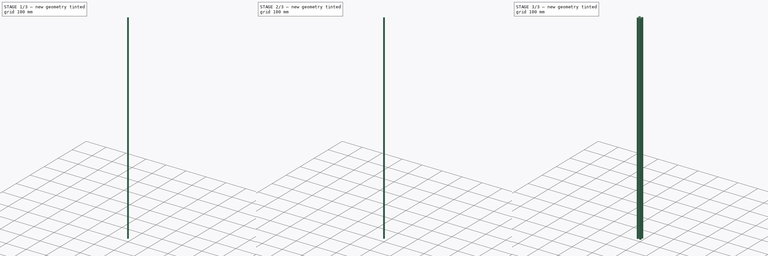
[diagram: build sequence overview — one tinted view per stage of 3, left to right]
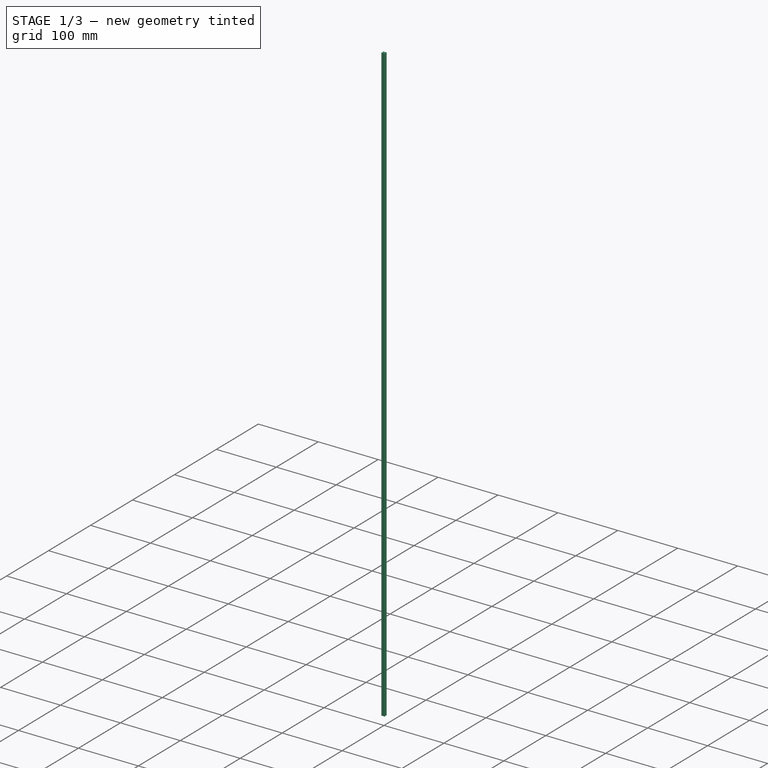
[diagram: stage 1 of 3 — iso view after this stage's code; geometry added in this stage tinted green]
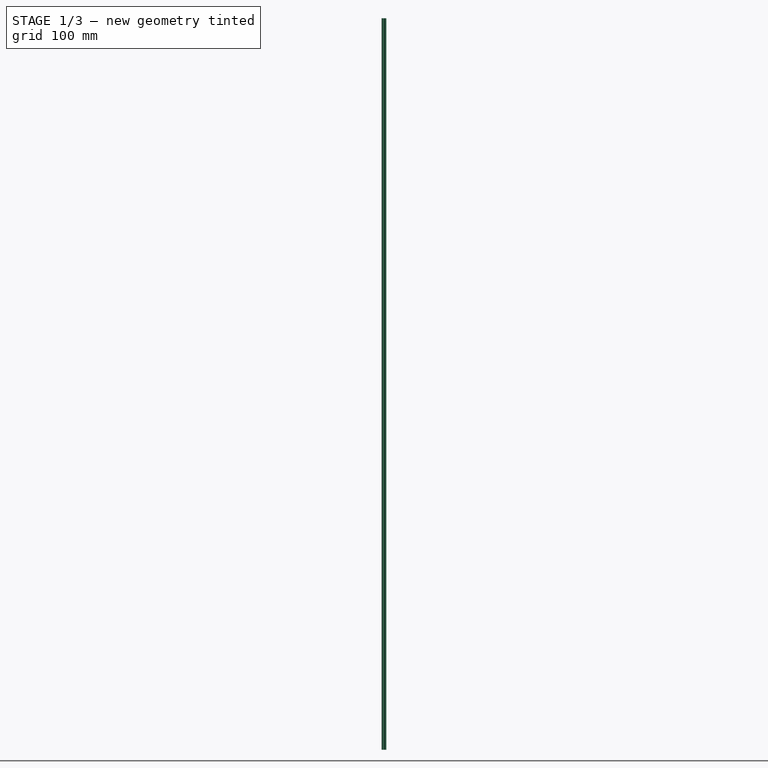
[diagram: stage 1 of 3 — front view after this stage's code; geometry added in this stage tinted green]
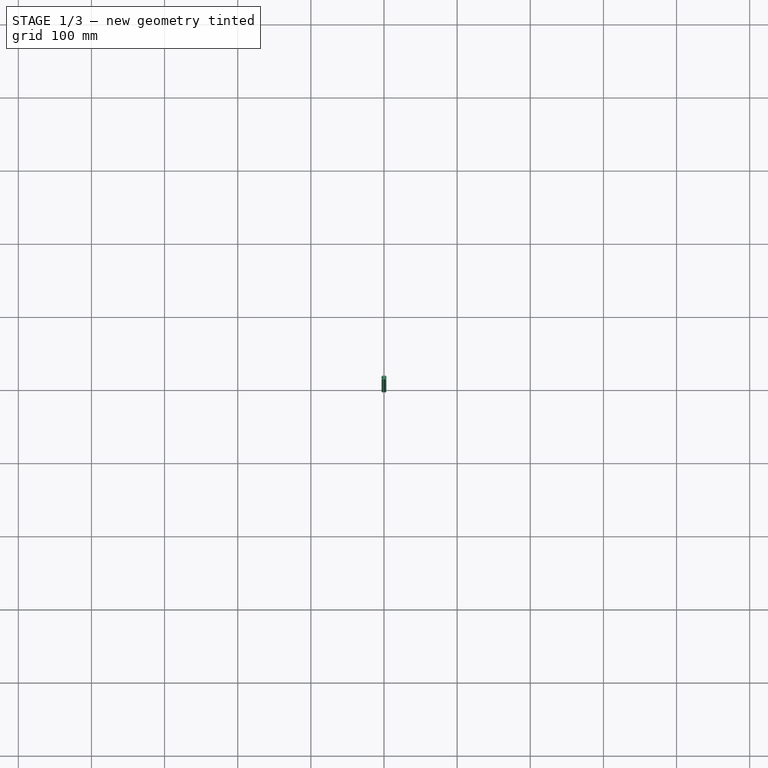
[diagram: stage 1 of 3 — top view after this stage's code; geometry added in this stage tinted green]
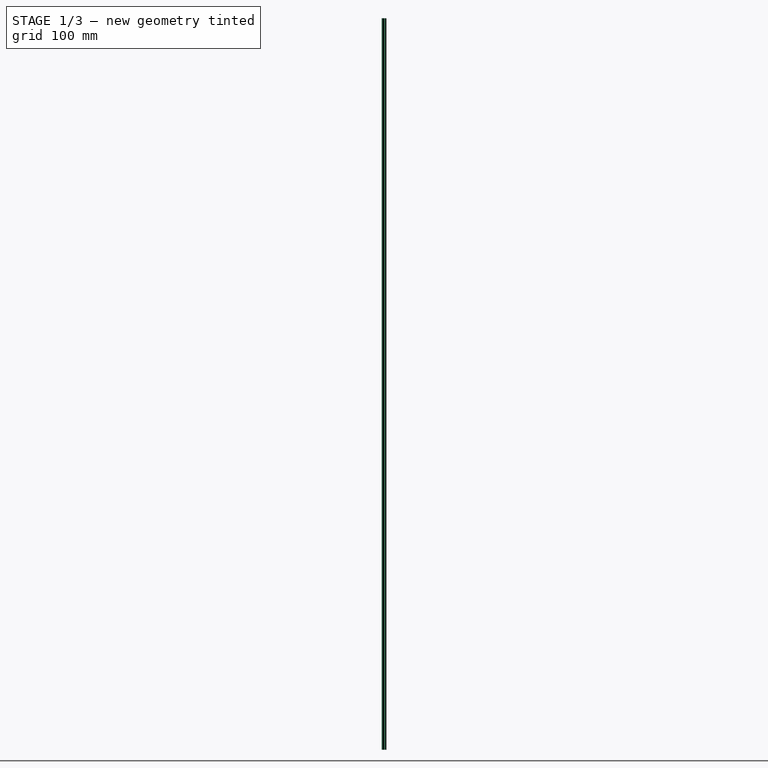
[diagram: stage 1 of 3 — right view after this stage's code; geometry added in this stage tinted green]
FCSTD DOCUMENT  (FreeCAD 0.19R24267 +99 (Git))
Label: TypeB_20x20_4open
License: All rights reserved
LicenseURL: https://en.wikipedia.org/wiki/All_rights_reserved
objects: Part::Box×2, Part::MultiFuse×2, Sketcher::SketchObject×1, PartDesign::Pad×1, PartDesign::Body×1, Spreadsheet::Sheet×1, Part::Cylinder×1, Part::Cut×1, Part::Fillet×1
note: 11 computed .brp shape members not serialized (recipe doc carries the construction recipe); baked Part::Feature solids carry a one-line shape summary decoded from their .brp

FEATURE [Part::Box] Box  label="Cube"
  AttacherType = Attacher::AttachEngine3D
  Height = 1000
  Length = 2
  Placement = pos=(-1,-3.55,0) rot=(0,0,1;0rad)
  Width = 7.1
  expr: Height = <<TypeB_20x20_4open_props>>.extrusion_length
FEATURE [Part::Box] Box001  label="Cube001"
  AttacherType = Attacher::AttachEngine3D
  Height = 1000
  Length = 2
  Placement = pos=(3.55,-1,0) rot=(0,0,1;1.5708rad)
  Width = 7.1
  expr: Height = <<TypeB_20x20_4open_props>>.extrusion_length
FEATURE [Part::MultiFuse] Fusion
  Placement = pos=(0,0,0) rot=(0,0,1;0.785398rad)
  Shapes = -> [Box001,Box]
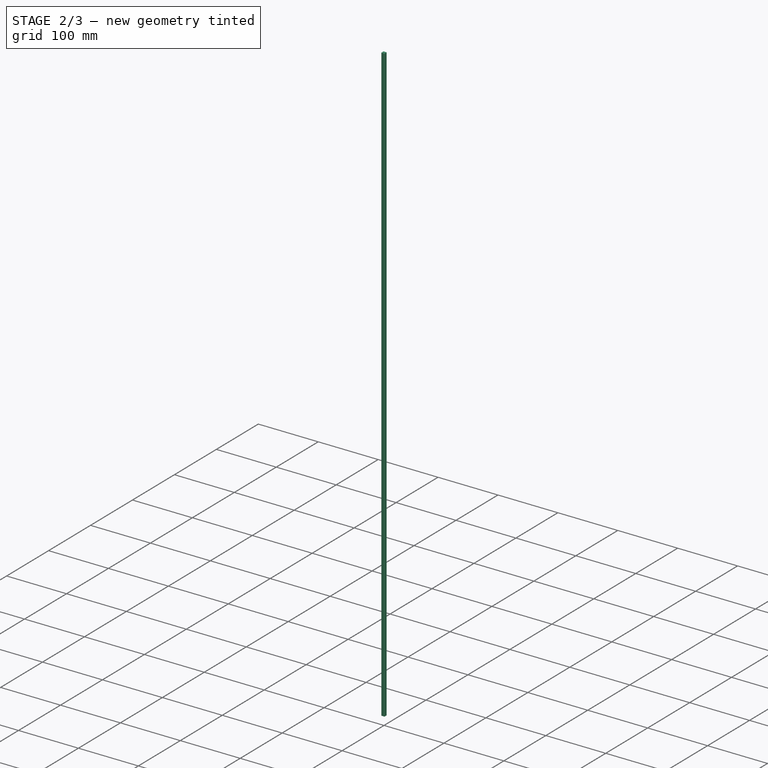
[diagram: stage 2 of 3 — iso view after this stage's code; geometry added in this stage tinted green]
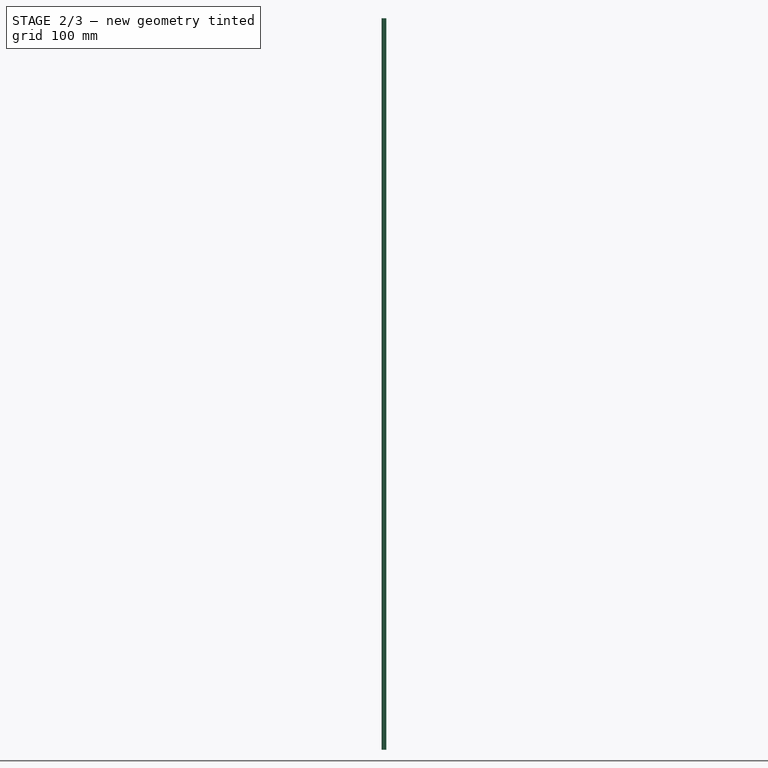
[diagram: stage 2 of 3 — front view after this stage's code; geometry added in this stage tinted green]
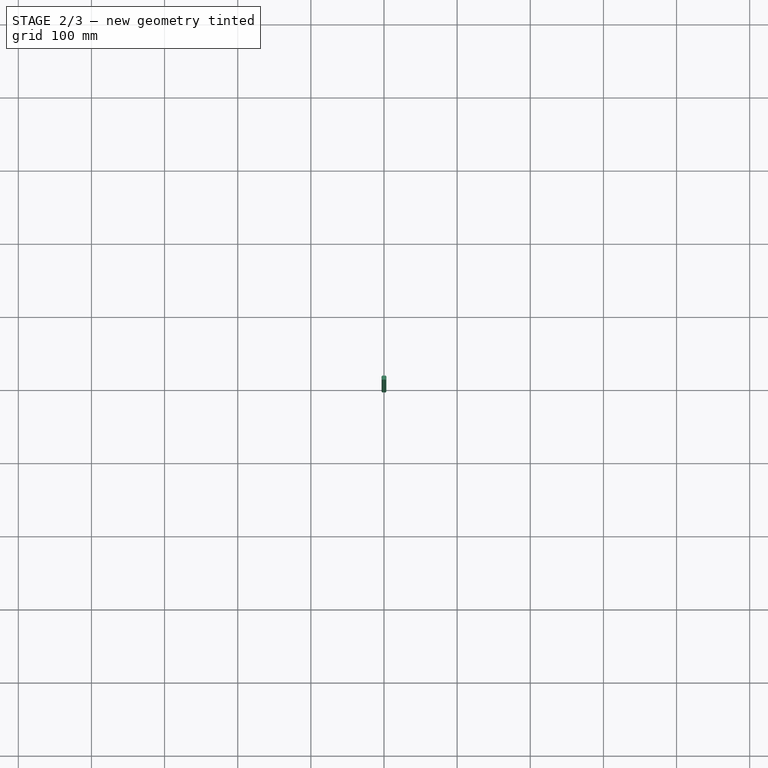
[diagram: stage 2 of 3 — top view after this stage's code; geometry added in this stage tinted green]
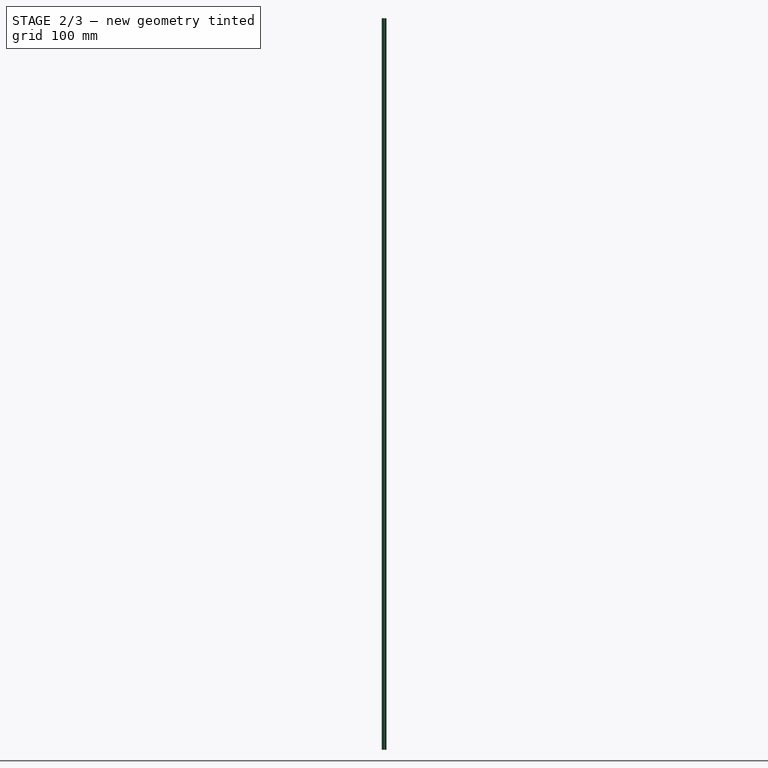
[diagram: stage 2 of 3 — right view after this stage's code; geometry added in this stage tinted green]
FEATURE [PartDesign::Body] Body
  Group = -> [Sketch,Pad]
  Origin = -> Origin
  Tip = -> Pad
FEATURE [Spreadsheet::Sheet] Spreadsheet  label="TypeB_20x20_4open_props"
  cells = A1=20 x 20mm Type B extrusion, open all sides; A2=Extrusion length; B2(extrusion_length)=1000
FEATURE [Part::Cylinder] Cylinder
  Angle = 360
  AttacherType = Attacher::AttachEngine3D
  Height = 1000
  Radius = 2.75
  expr: Height = <<TypeB_20x20_4open_props>>.extrusion_length
FEATURE [Part::MultiFuse] Fusion001
  Shapes = -> [Fusion,Cylinder]
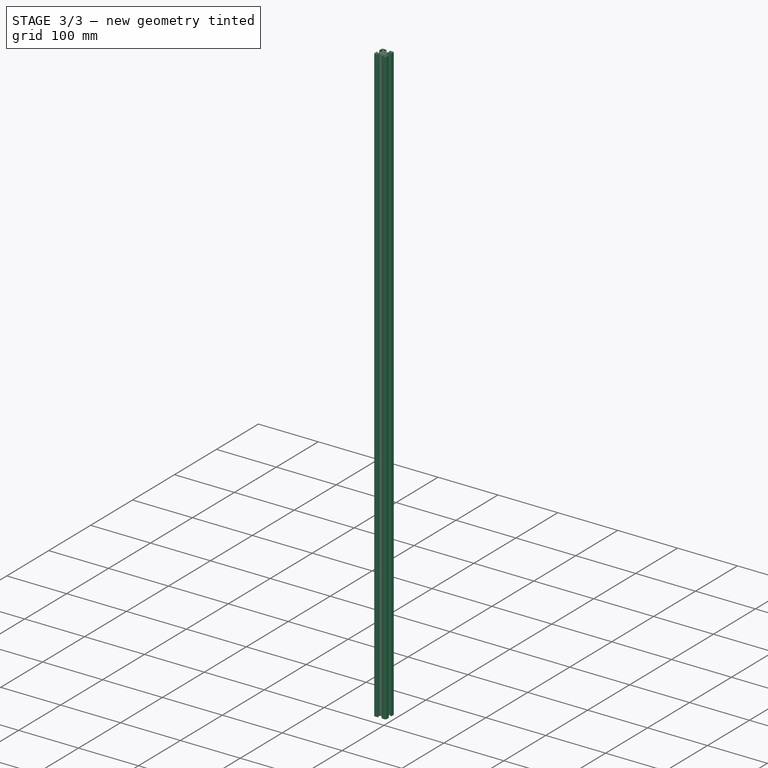
[diagram: stage 3 of 3 — iso view after this stage's code; geometry added in this stage tinted green]
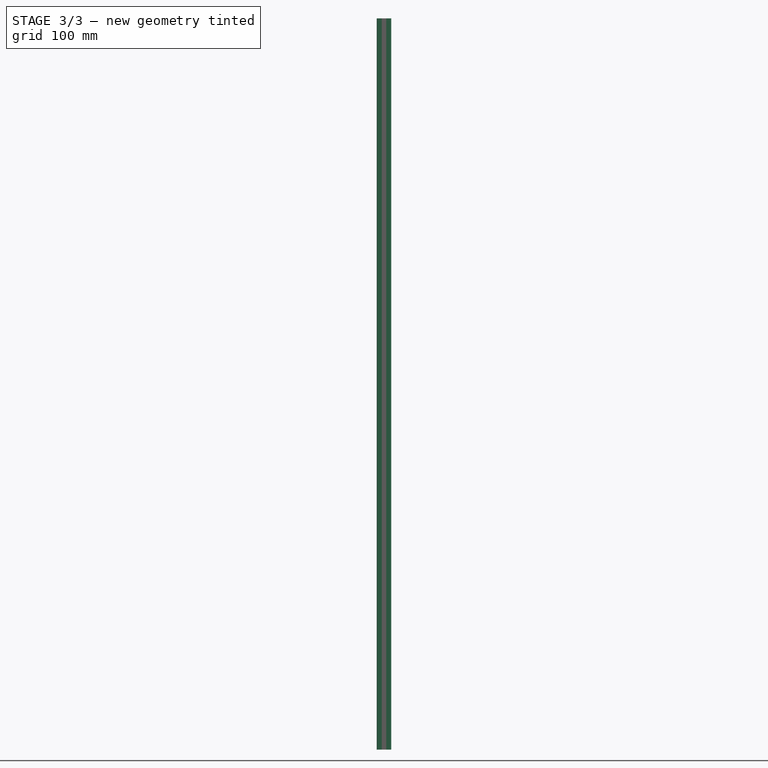
[diagram: stage 3 of 3 — front view after this stage's code; geometry added in this stage tinted green]
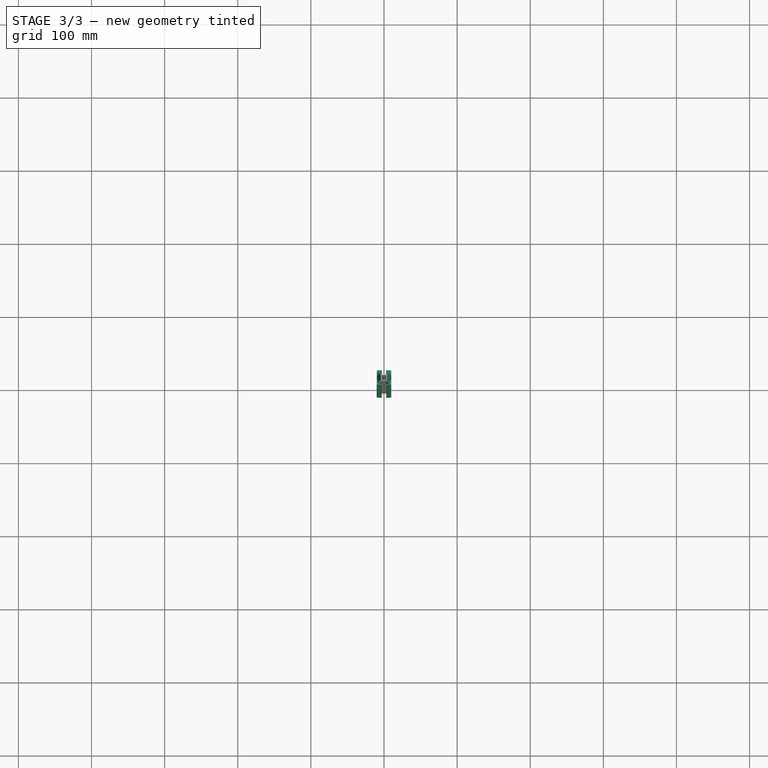
[diagram: stage 3 of 3 — top view after this stage's code; geometry added in this stage tinted green]
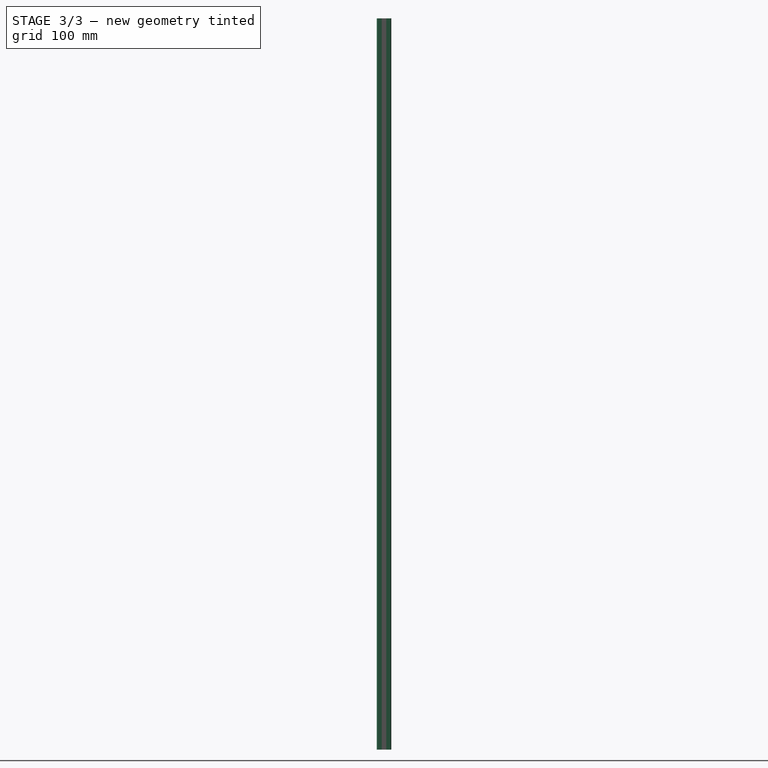
[diagram: stage 3 of 3 — right view after this stage's code; geometry added in this stage tinted green]
FEATURE [Sketcher::SketchObject] Sketch
  FullyConstrained = true
  MapMode = 5
  Support = -> [XY_Plane]
  sketch-geometry (36):
    g0: LineSegment StartX=-10 StartY=-10 StartZ=0 EndX=-3.1 EndY=-10 EndZ=0
    g1: LineSegment StartX=-3.1 StartY=-4.5 StartZ=0 EndX=3.1 EndY=-4.5 EndZ=0
    g2: LineSegment StartX=3.1 StartY=-10 StartZ=0 EndX=10 EndY=-10 EndZ=0
    g3: LineSegment StartX=10 StartY=-10 StartZ=0 EndX=10 EndY=-3.1 EndZ=0
    g4: LineSegment StartX=10 StartY=-3.1 StartZ=0 EndX=8.5 EndY=-3.1 EndZ=0
    g5: LineSegment StartX=8.5 StartY=-3.1 StartZ=0 EndX=8.5 EndY=-7.1 EndZ=0
    g6: LineSegment StartX=8.5 StartY=-7.1 StartZ=0 EndX=4.5 EndY=-3.1 EndZ=0
    g7: LineSegment StartX=4.5 StartY=-3.1 StartZ=0 EndX=4.5 EndY=3.1 EndZ=0
    g8: LineSegment StartX=4.5 StartY=3.1 StartZ=0 EndX=8.5 EndY=7.1 EndZ=0
    g9: LineSegment StartX=8.5 StartY=7.1 StartZ=0 EndX=8.5 EndY=3.1 EndZ=0
    g10: LineSegment StartX=8.5 StartY=3.1 StartZ=0 EndX=10 EndY=3.1 EndZ=0
    g11: LineSegment StartX=10 StartY=3.1 StartZ=0 EndX=10 EndY=10 EndZ=0
    g12: LineSegment StartX=10 StartY=10 StartZ=0 EndX=3.1 EndY=10 EndZ=0
    g13: LineSegment StartX=3.1 StartY=10 StartZ=0 EndX=3.1 EndY=8.5 EndZ=0
    g14: LineSegment StartX=3.1 StartY=8.5 StartZ=0 EndX=7.1 EndY=8.5 EndZ=0
    g15: LineSegment StartX=7.1 StartY=8.5 StartZ=0 EndX=3.1 EndY=4.5 EndZ=0
    g16: LineSegment StartX=3.1 StartY=4.5 StartZ=0 EndX=-3.1 EndY=4.5 EndZ=0
    g17: LineSegment StartX=-3.1 StartY=4.5 StartZ=0 EndX=-7.1 EndY=8.5 EndZ=0
    g18: LineSegment StartX=-7.1 StartY=8.5 StartZ=0 EndX=-3.1 EndY=8.5 EndZ=0
    g19: LineSegment StartX=-3.1 StartY=8.5 StartZ=0 EndX=-3.1 EndY=10 EndZ=0
    g20: LineSegment StartX=-3.1 StartY=10 StartZ=0 EndX=-10 EndY=10 EndZ=0
    g21: LineSegment StartX=-10 StartY=10 StartZ=0 EndX=-10 EndY=3.1 EndZ=0
    g22: LineSegment StartX=-10 StartY=3.1 StartZ=0 EndX=-8.5 EndY=3.1 EndZ=0
    g23: LineSegment StartX=-8.5 StartY=3.1 StartZ=0 EndX=-8.5 EndY=7.1 EndZ=0
    g24: LineSegment StartX=-8.5 StartY=7.1 StartZ=0 EndX=-4.5 EndY=3.1 EndZ=0
    g25: LineSegment StartX=-4.5 StartY=3.1 StartZ=0 EndX=-4.5 EndY=-3.1 EndZ=0
    g26: LineSegment StartX=-4.5 StartY=-3.1 StartZ=0 EndX=-8.5 EndY=-7.1 EndZ=0
    g27: LineSegment StartX=-8.5 StartY=-7.1 StartZ=0 EndX=-8.5 EndY=-3.1 EndZ=0
    g28: LineSegment StartX=-8.5 StartY=-3.1 StartZ=0 EndX=-10 EndY=-3.1 EndZ=0
    g29: LineSegment StartX=-10 StartY=-3.1 StartZ=0 EndX=-10 EndY=-10 EndZ=0
    g30: LineSegment StartX=3.1 StartY=-10 StartZ=0 EndX=3.1 EndY=-8.5 EndZ=0
    g31: LineSegment StartX=3.1 StartY=-8.5 StartZ=0 EndX=7.1 EndY=-8.5 EndZ=0
    g32: LineSegment StartX=-3.1 StartY=-10 StartZ=0 EndX=-3.1 EndY=-8.5 EndZ=0
    g33: LineSegment StartX=-3.1 StartY=-8.5 StartZ=0 EndX=-7.1 EndY=-8.5 EndZ=0
    g34: LineSegment StartX=-7.1 StartY=-8.5 StartZ=0 EndX=-3.1 EndY=-4.5 EndZ=0
    g35: LineSegment StartX=3.1 StartY=-4.5 StartZ=0 EndX=7.1 EndY=-8.5 EndZ=0
  constraints (108):
    c: Horizontal(g0)
    c: Horizontal(g1)
    c: Horizontal(g2)
    c: Coincident(g2,g3)
    c: Vertical(g3)
    c: Coincident(g3,g4)
    c: Horizontal(g4)
    c: Coincident(g4,g5)
    c: Coincident(g5,g6)
    c: Coincident(g6,g7)
    c: Vertical(g7)
    c: Coincident(g7,g8)
    c: Coincident(g8,g9)
    c: Vertical(g9)
    c: Coincident(g9,g10)
    c: Coincident(g10,g11)
    c: Vertical(g11)
    c: Coincident(g11,g12)
    c: Horizontal(g12)
    c: Coincident(g12,g13)
    c: Coincident(g13,g14)
    c: Coincident(g14,g15)
    c: Coincident(g15,g16)
    c: Horizontal(g16)
    c: Coincident(g16,g17)
    c: Coincident(g17,g18)
    c: Horizontal(g18)
    c: Coincident(g18,g19)
    c: Coincident(g19,g20)
    c: Horizontal(g20)
    c: Coincident(g20,g21)
    c: Coincident(g21,g22)
    c: Horizontal(g22)
    c: Coincident(g22,g23)
    c: Coincident(g23,g24)
    c: Coincident(g24,g25)
    c: Coincident(g25,g26)
    c: Coincident(g26,g27)
    c: Coincident(g27,g28)
    c: Horizontal(g28)
    c: Coincident(g28,g29)
    c: Coincident(g29,g0)
    c: DistanceX(g20,g11) = 20
    c: DistanceX(g20,g-1) = 10
    c: Vertical(g21)
    c: Vertical(g29)
    c: Vertical(g25)
    c: DistanceY(g2,g11) = 20
    c: DistanceY(g-1,g11) = 10
    c: DistanceY(g-1,g20) = 10
    c: DistanceX(g0,g2) = 20
    c: DistanceX(g-1,g2) = 10
    c: DistanceY(g0,g20) = 20
    c: Vertical(g19)
    c: Vertical(g13)
    c: Vertical(g5)
    c: Vertical(g27)
    c: Vertical(g23)
    c: Horizontal(g14)
    c: Horizontal(g10)
    c: DistanceY(g25,g25) = 6.2
    c: DistanceY(g7,g7) = 6.2
    c: DistanceX(g16,g16) = 6.2
    c: DistanceX(g1,g1) = 6.2
    c: DistanceX(g1,g-1) = 3.1
    c: DistanceY(g6,g-1) = 3.1
    c: DistanceX(g-1,g15) = 3.1
    c: DistanceY(g-1,g24) = 3.1
    c: DistanceY(g19,g19) = 1.5
    c: DistanceY(g13,g13) = 1.5
    c: DistanceX(g10,g10) = 1.5
    c: DistanceX(g4,g4) = 1.5
    c: Coincident(g2,g30)
    c: Vertical(g30)
    c: Coincident(g30,g31)
    c: Horizontal(g31)
    c: Coincident(g0,g32)
    c: Vertical(g32)
    c: Coincident(g32,g33)
    c: Horizontal(g33)
    c: Coincident(g34,g33)
    c: Coincident(g34,g1)
    c: Coincident(g35,g1)
    c: Coincident(g35,g31)
    c: DistanceY(g30,g30) = 1.5
    c: DistanceY(g32,g32) = 1.5
    c: DistanceX(g28,g28) = 1.5
    c: DistanceX(g22,g22) = 1.5
    c: DistanceY(g28,g21) = 6.2
    c: DistanceY(g-1,g21) = 3.1
    c: DistanceX(g19,g-1) = 3.1
    c: DistanceX(g19,g12) = 6.2
    c: DistanceY(g-1,g10) = 3.1
    c: DistanceY(g3,g10) = 6.2
    c: DistanceX(g-1,g30) = 3.1
    c: DistanceX(g32,g30) = 6.2
    c: Angle(g25,g26) = 2.35619
    c: Angle(g24,g25) = 2.35619
    c: Angle(g7,g8) = 2.35619
    c: Angle(g6,g7) = 2.35619
    c: Angle(g15,g16) = 2.35619
    c: Angle(g1,g35) = 2.35619
    c: DistanceY(g0,g1) = 5.5
    c: DistanceY(g16,g19) = 5.5
    c: DistanceX(g21,g24) = 5.5
    c: DistanceX(g7,g10) = 5.5
    c: Angle(g34,g1) = 2.35619
    c: DistanceX(g18,g18) = 4
FEATURE [PartDesign::Pad] Pad
  Direction = (1,1,1)
  Length = 1000
  Length2 = 100
  Profile = -> Sketch
  Type = 0
  expr: Length = <<TypeB_20x20_4open_props>>.extrusion_length
FEATURE [Part::Cut] Cut
  Base = -> Body
  Tool = -> Fusion001
FEATURE [Part::Fillet] Fillet  label="TypeB_20x20_4open"
  Base = -> Cut
  Edges = 4 edges r=1.5: [Edge2,Edge123,Edge126,Edge141]
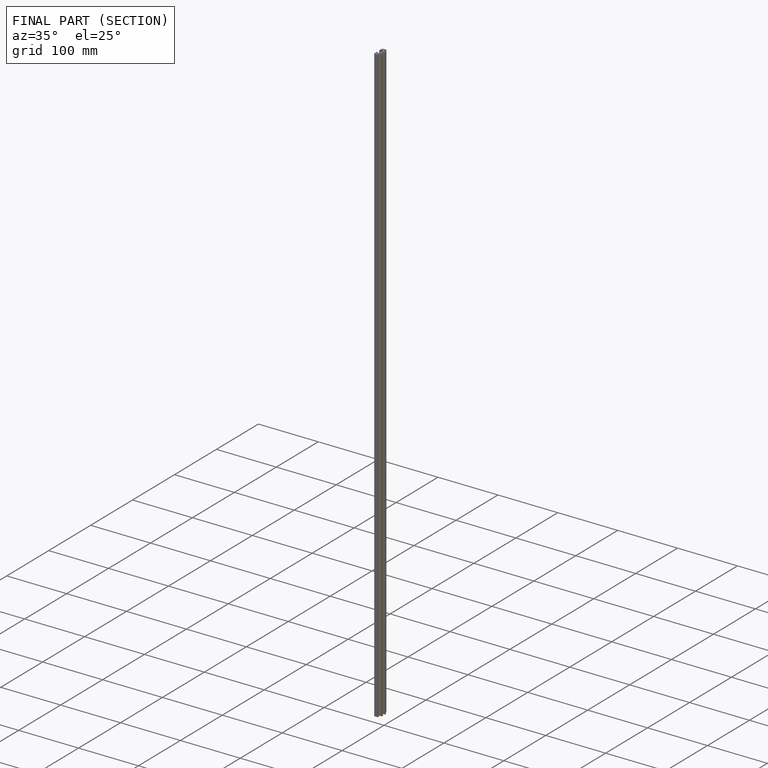
[diagram: finished part — half-section view (interior)]
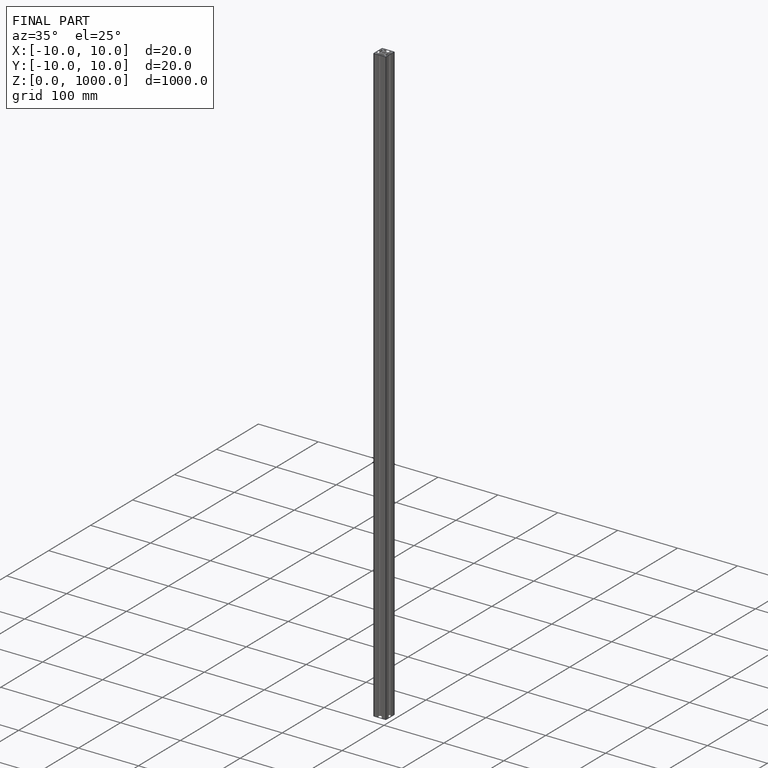
[diagram: finished part — iso view with bounding-box wireframe]
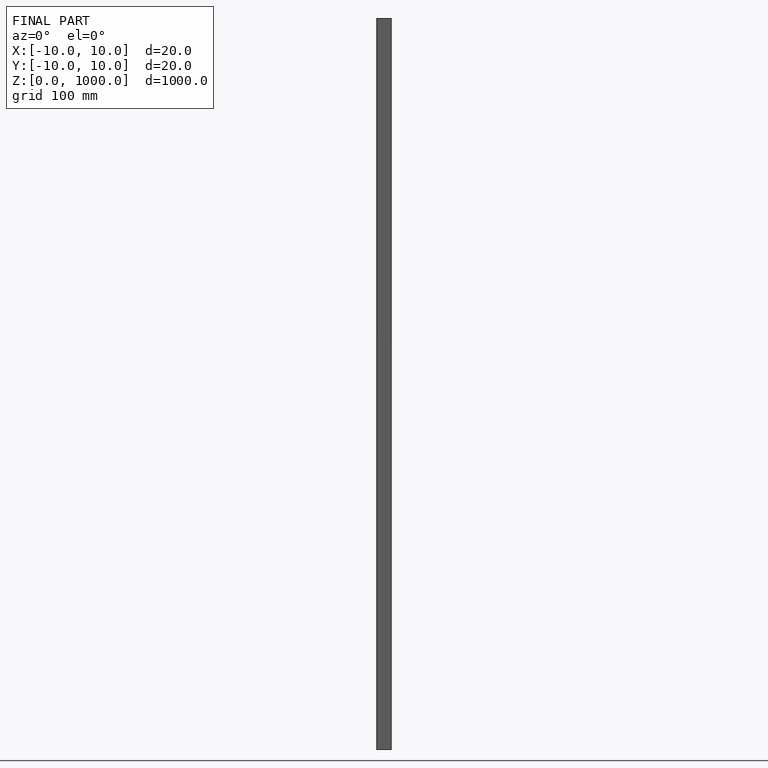
[diagram: finished part — front view with bounding-box wireframe]
